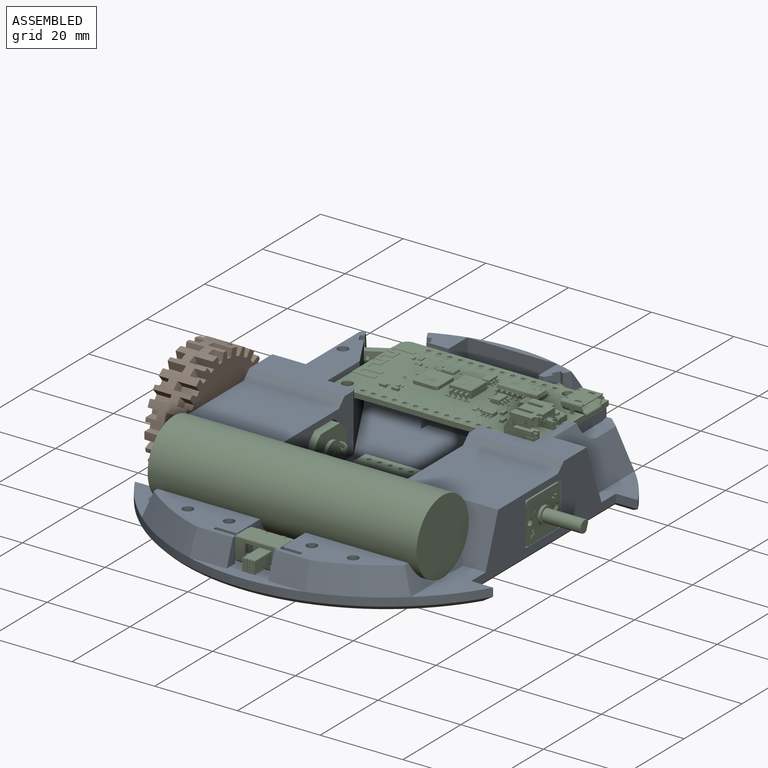
[diagram: assembled view]
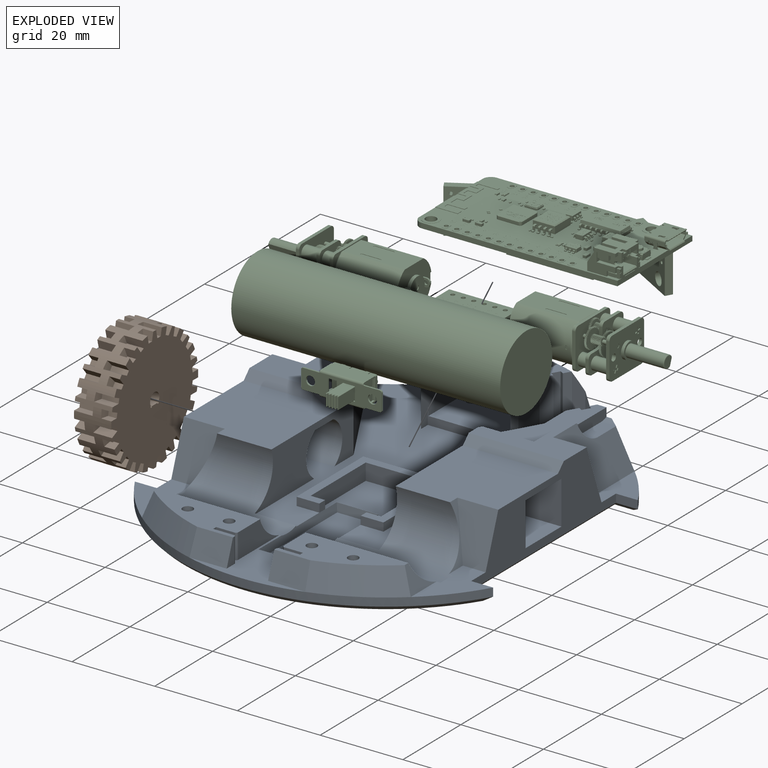
[diagram: exploded view]
GUIDED TOUR — FREECAD ASSEMBLY "Layout"

This assembly has 3 components, labeled P0..P2 below (a component is one placed body or linked part; the same part can appear more than once), held together by 0 modeled joints plus 3 derived contact edges. A joint is a constraint between two components; its type names the relative motion it leaves free:
  CONTACT — a derived adjacency edge — the two components touch in the source model (clearance under 2% of the assembly's diagonal); it is measured from the geometry, not a modeled constraint.
Axis/direction vectors are unit vectors and 'through' points are millimeter coordinates, both in the assembly's world frame.

MATES
  1. CONTACT "contact_0_1": P0 <-> P1, contact direction (-1.000, 0.000, 0.000) through (-38.50, 7.25, 14.91) mm (derived from contact, not a modeled constraint)
  2. CONTACT "contact_0_2": P0 <-> P2, contact direction (-0.007, 0.764, 0.645) through (28.52, 5.12, 1.77) mm (derived from contact, not a modeled constraint)
  3. CONTACT "contact_1_2": P1 <-> P2, contact direction (1.000, 0.000, 0.000) through (-38.95, -1.55, 5.00) mm (derived from contact, not a modeled constraint)

ASSEMBLY ORDER
  1. P0 — the base component [order heuristic]
  2. P1 [order heuristic]
  3. P2 [order heuristic]
Order-tag legend:
  [order heuristic] — this assembly is geometrically interlocked (no collision-free removal order exists), so components are listed in mate-graph order; insertion feasibility is not verified.

Of the 3 components, 2 carry a construction recipe — the FreeCAD feature program (sketches with constraints, then the solid features that consume them) that regenerates the part from scratch, quoted from this document or from the linked companion document it references; the rest are supplied as boundary geometry only. The tour below walks the components in assembly order: each is shown spotlighted twice — in the assembled view, then in the exploded view, where a leader line traces a displaced component back to its assembled socket (components that stay in place when exploded have no leader line; saturated green if recipe-attached, orange if geometry-only; every other component desaturated gray) — followed by its recipe or geometry summary and the mates that hold it.
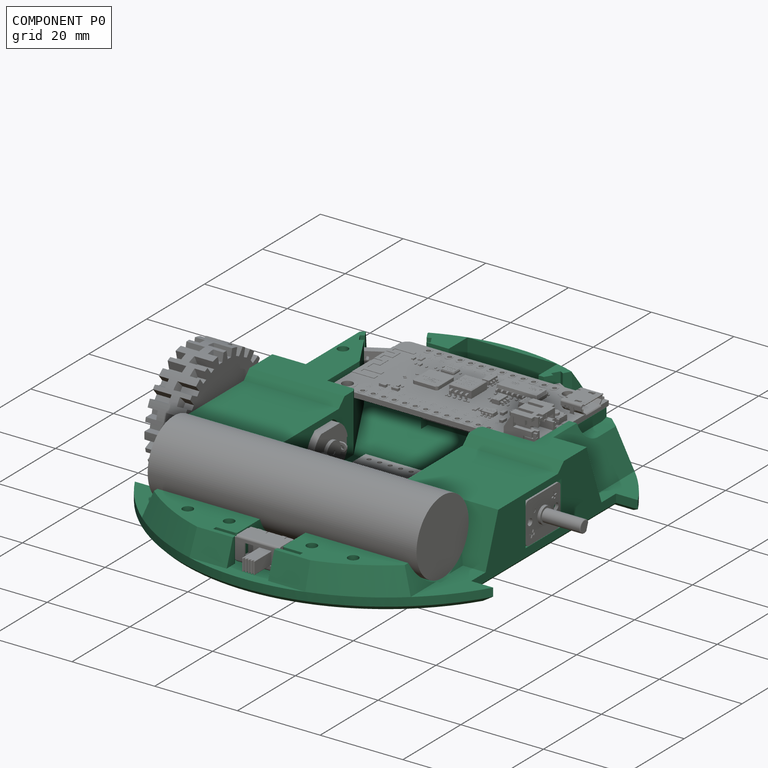
[diagram: component P0 — assembled]
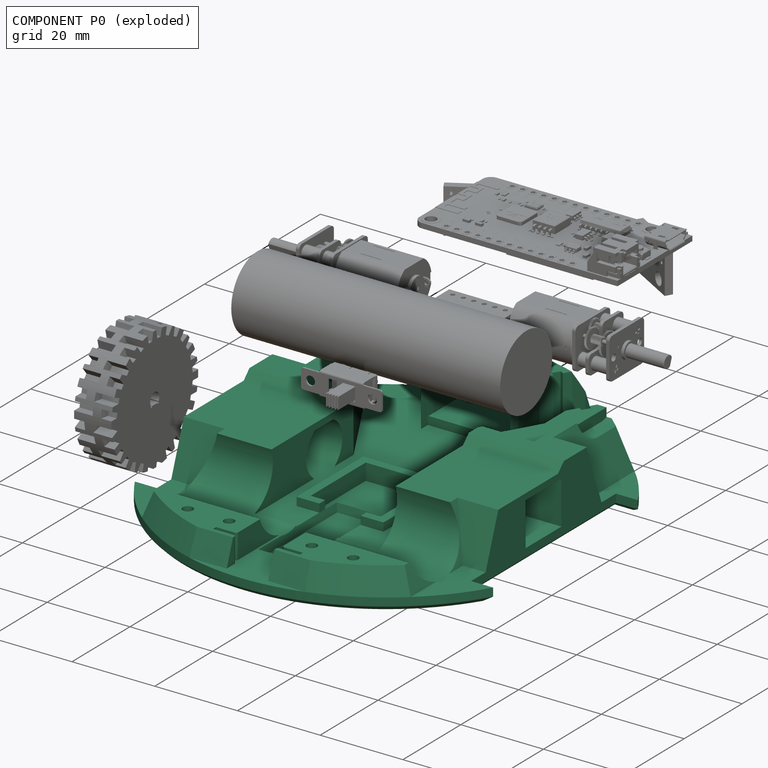
[diagram: component P0 — exploded]
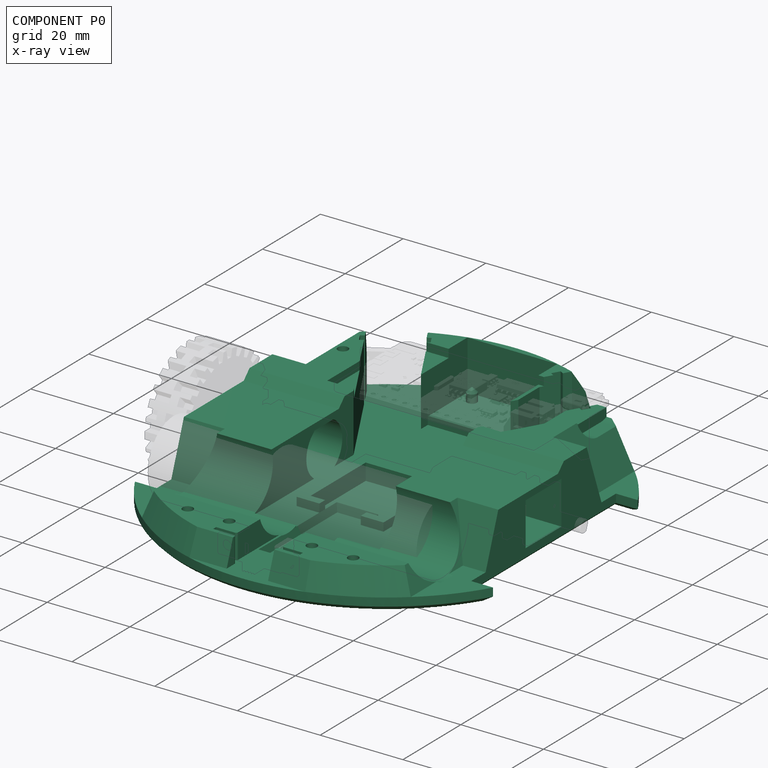
[diagram: component P0 — x-ray view]
COMPONENT P0 — recipe-attached ("Body", modeled in this document).
Held by: resting contact with P1 (derived edge); resting contact with P2 (derived edge).
Construction recipe (the document's own serialized feature program — sketch geometry with constraints, then the solid features built on it; lengths are millimeters unless a unit is written):

FEATURE [Sketcher::SketchObject] Sketch  label="Layout001"
  ArcFitTolerance = 1e-06
  AttachmentSupport = -> [XY_Plane001]
  FullyConstrained = true
  MakeInternals = false
  MapMode = 5
  sketch-geometry (3):
    g0: Circle CenterX=0 CenterY=0 CenterZ=0 NormalX=0 NormalY=0 NormalZ=1 AngleXU=0 Radius=50
    g1: LineSegment StartX=0 StartY=0 StartZ=0 EndX=-25 EndY=43.3013 EndZ=0
    g2: LineSegment StartX=0 StartY=0 StartZ=0 EndX=25 EndY=43.3013 EndZ=0
  constraints (8):
    c: Coincident(g0,g-1)
    c: Diameter(g0) = 100
    c: Coincident(g1,g0)
    c: PointOnObject(g1,g0)
    c: Coincident(g2,g0)
    c: PointOnObject(g2,g0)
    c: Angle(g2,g-2) = 0.523599
    c: Angle(g-2,g1) = 0.523599
FEATURE [Sketcher::SketchObject] Sketch001
  ArcFitTolerance = 1e-06
  AttachmentSupport = -> [XY_Plane001]
  FullyConstrained = true
  MakeInternals = false
  MapMode = 5
  sketch-geometry (1):
    g0: Circle CenterX=0 CenterY=0 CenterZ=0 NormalX=0 NormalY=0 NormalZ=1 AngleXU=0 Radius=50
  constraints (2):
    c: Coincident(g0,g-1)
    c: Diameter(g0) = 100
FEATURE [PartDesign::Pad] Pad
  Direction = (0,0,1)
  Length = 0
  Length2 = 3
  Profile = -> Sketch001
  ReferenceAxis = -> Sketch001 [N_Axis]
  Refine = true
  Suppressed = false
  Type = 4
FEATURE [Sketcher::SketchObject] Sketch002
  ArcFitTolerance = 1e-06
  AttachmentSupport = -> [XY_Plane001]
  FullyConstrained = true
  MakeInternals = false
  MapMode = 5
  sketch-geometry (15):
    g0: LineSegment StartX=-50 StartY=20 StartZ=0 EndX=-50 EndY=-20 EndZ=0
    g1: LineSegment StartX=50 StartY=-20 StartZ=0 EndX=50 EndY=20 EndZ=0
    g2: LineSegment StartX=-50 StartY=-20 StartZ=0 EndX=-32.5 EndY=-20 EndZ=0
    g3: LineSegment StartX=-32.5 StartY=-20 StartZ=0 EndX=-32.5 EndY=-37.9967 EndZ=0
    g4: LineSegment StartX=32.5 StartY=-37.9967 StartZ=0 EndX=32.5 EndY=-20 EndZ=0
    g5: LineSegment StartX=32.5 StartY=-20 StartZ=0 EndX=50 EndY=-20 EndZ=0
    g6: Circle [constr] CenterX=0 CenterY=0 CenterZ=0 NormalX=0 NormalY=0 NormalZ=1 AngleXU=0 Radius=50
    g7: ArcOfCircle CenterX=0 CenterY=0 CenterZ=0 NormalX=0 NormalY=0 NormalZ=1 AngleXU=0 Radius=50 StartAngle=4.0048 EndAngle=4.42859
    g8: ArcOfCircle CenterX=0 CenterY=0 CenterZ=0 NormalX=0 NormalY=0 NormalZ=1 AngleXU=0 Radius=50 StartAngle=4.99618 EndAngle=5.41997
    g9: LineSegment StartX=-14 StartY=-48 StartZ=0 EndX=14 EndY=-48 EndZ=0
    g10: LineSegment StartX=-50 StartY=20 StartZ=0 EndX=-35 EndY=20 EndZ=0
    g11: LineSegment StartX=-35 StartY=20 StartZ=0 EndX=-35 EndY=35.7071 EndZ=0
    g12: LineSegment StartX=50 StartY=20 StartZ=0 EndX=35 EndY=20 EndZ=0
    g13: LineSegment StartX=35 StartY=20 StartZ=0 EndX=35 EndY=35.7071 EndZ=0
    g14: ArcOfCircle CenterX=0 CenterY=0 CenterZ=0 NormalX=0 NormalY=0 NormalZ=1 AngleXU=0 Radius=50 StartAngle=0.795399 EndAngle=2.34619
  constraints (44):
    c: Vertical(g0)
    c: Vertical(g1)
    c: DistanceY(g1,g1) = 40
    c: Distance(g1,g-1) = 20
    c: DistanceX(g0,g1) = 100
    c: DistanceX(g-1,g1) = 50
    c: Coincident(g2,g0)
    c: Horizontal(g2)
    c: Coincident(g3,g2)
    c: Vertical(g3)
    c: Vertical(g4)
    c: Coincident(g5,g4)
    c: Coincident(g5,g1)
    c: Horizontal(g5)
    c: Horizontal(g2,g4)
    c: Equal(g5,g2)
    c: DistanceX(g3,g4) = 65
    c: Horizontal(g4,g3)
    c: Coincident(g6,g-1)
    c: Diameter(g6) = 100
    c: PointOnObject(g3,g6)
    c: Coincident(g7,g6)
    c: Coincident(g7,g3)
    c: Coincident(g8,g6)
    c: Coincident(g8,g4)
    c: Coincident(g9,g7)
    c: Coincident(g9,g8)
    c: Horizontal(g9)
    c: DistanceY(g8,g-1) = 48
    c: Coincident(g10,g0)
    c: Horizontal(g10)
    c: Coincident(g11,g10)
    c: PointOnObject(g11,g6)
    c: Coincident(g12,g1)
    c: Horizontal(g12)
    c: Coincident(g13,g12)
    c: Coincident(g14,g6)
    c: Coincident(g14,g11)
    c: Coincident(g14,g13)
    c: Horizontal(g13,g11)
    c: Vertical(g11)
    c: Vertical(g13)
    c: Horizontal(g10,g12)
    c: DistanceX(g11,g13) = 70
FEATURE [PartDesign::Pad] Pad002  label="WheelMount"
  BaseFeature = -> Pad
  Direction = (0,0,1)
  Length = 14
  Length2 = 10
  Profile = -> Sketch002
  ReferenceAxis = -> Sketch002 [N_Axis]
  Refine = true
  Suppressed = false
  TaperAngle = -20
  Type = 0
FEATURE [Sketcher::SketchObject] Sketch005
  ArcFitTolerance = 1e-06
  AttachmentSupport = -> [XY_Plane001]
  FullyConstrained = true
  MakeInternals = false
  MapMode = 5
  sketch-geometry (4):
    g0: LineSegment StartX=-60 StartY=25 StartZ=0 EndX=-60 EndY=-25 EndZ=0
    g1: LineSegment StartX=-60 StartY=-25 StartZ=0 EndX=-38 EndY=-25 EndZ=0
    g2: LineSegment StartX=-38 StartY=-25 StartZ=0 EndX=-38 EndY=25 EndZ=0
    g3: LineSegment StartX=-38 StartY=25 StartZ=0 EndX=-60 EndY=25 EndZ=0
  constraints (12):
    c: Coincident(g0,g1)
    c: Coincident(g1,g2)
    c: Coincident(g2,g3)
    c: Coincident(g3,g0)
    c: Vertical(g0)
    c: Vertical(g2)
    c: Horizontal(g1)
    c: Horizontal(g3)
    c: DistanceX(g1,g-1) = 38
    c: DistanceY(g0,g0) = 50
    c: DistanceY(g-1,g0) = 25
    c: DistanceX(g0,g-1) = 60
FEATURE [PartDesign::Pocket] Pocket001  label="WheelCutout"
  BaseFeature = -> Pad002
  Direction = (0,0,-1)
  Length = 5
  Length2 = 5
  Midplane = true
  Profile = -> Sketch005
  ReferenceAxis = -> Sketch005 [N_Axis]
  Refine = true
  Suppressed = false
  Type = 1
FEATURE [Sketcher::SketchObject] Sketch006
  ArcFitTolerance = 1e-06
  AttachmentSupport = -> [Pocket001]
  FullyConstrained = true
  MakeInternals = false
  MapMode = 5
  Placement = pos=(-38,0,0) rot=(0.57735,-0.57735,-0.57735;2.0944rad)
  sketch-geometry (4):
    g0: LineSegment StartX=-6.175 StartY=10.45 StartZ=0 EndX=-6.175 EndY=0 EndZ=0
    g1: LineSegment StartX=-6.175 StartY=0 StartZ=0 EndX=6.175 EndY=0 EndZ=0
    g2: LineSegment StartX=6.175 StartY=0 StartZ=0 EndX=6.175 EndY=10.45 EndZ=0
    g3: LineSegment StartX=6.175 StartY=10.45 StartZ=0 EndX=-6.175 EndY=10.45 EndZ=0
  constraints (11):
    c: Coincident(g0,g1)
    c: Coincident(g1,g2)
    c: Coincident(g2,g3)
    c: Coincident(g3,g0)
    c: Vertical(g0)
    c: Vertical(g2)
    c: Horizontal(g1)
    c: PointOnObject(g1,g-1)
    c: DistanceY(g2,g2) = 10.45
    c: DistanceX(g3,g3) = 12.35
    c: Symmetric(g2,g0,g-2)
FEATURE [PartDesign::Pocket] Pocket002  label="GearboxCutout"
  BaseFeature = -> Pocket001
  Direction = (1,0,0)
  Length = 9.5
  Length2 = 5
  Profile = -> Sketch006
  ReferenceAxis = -> Sketch006 [N_Axis]
  Refine = true
  Suppressed = false
  Type = 0
FEATURE [Sketcher::SketchObject] Sketch007
  ArcFitTolerance = 1e-06
  AttachmentSupport = -> [Pocket002]
  FullyConstrained = true
  MakeInternals = false
  MapMode = 5
  Placement = pos=(-28.5,0,0) rot=(0.57735,-0.57735,-0.57735;2.0944rad)
  sketch-geometry (6):
    g0: ArcOfCircle CenterX=0 CenterY=5.125 CenterZ=0 NormalX=0 NormalY=0 NormalZ=1 AngleXU=0 Radius=6.2 StartAngle=2.16853 EndAngle=4.11465
    g1: ArcOfCircle CenterX=0 CenterY=5.125 CenterZ=0 NormalX=0 NormalY=0 NormalZ=1 AngleXU=0 Radius=6.2 StartAngle=5.31012 EndAngle=7.25625
    g2: LineSegment StartX=-3.48918 StartY=0 StartZ=0 EndX=3.48918 EndY=0 EndZ=0
    g3: LineSegment StartX=-3.48918 StartY=10.25 StartZ=0 EndX=-3.48918 EndY=10.45 EndZ=0
    g4: LineSegment StartX=-3.48918 StartY=10.45 StartZ=0 EndX=3.48918 EndY=10.45 EndZ=0
    g5: LineSegment StartX=3.48918 StartY=10.45 StartZ=0 EndX=3.48918 EndY=10.25 EndZ=0
  constraints (19):
    c: Coincident(g2,g0)
    c: Coincident(g2,g1)
    c: Horizontal(g2)
    c: Equal(g0,g1)
    c: Coincident(g3,g0)
    c: Coincident(g4,g3)
    c: Horizontal(g4)
    c: Coincident(g5,g4)
    c: Coincident(g5,g1)
    c: Vertical(g5)
    c: Vertical(g3)
    c: Equal(g3,g5)
    c: Distance(g5,g5) = 0.2
    c: PointOnObject(g1,g-1)
    c: Radius(g1) = 6.2
    c: Coincident(g0,g1)
    c: Vertical(g1,g1)
    c: PointOnObject(g0,g-2)
    c: DistanceY(g-1,g0) = 5.125
FEATURE [PartDesign::Pocket] Pocket003  label="MotorCutout"
  BaseFeature = -> Pocket002
  Direction = (1,0,0)
  Length = 15
  Length2 = 5
  Profile = -> Sketch007
  ReferenceAxis = -> Sketch007 [N_Axis]
  Refine = true
  Suppressed = false
  Type = 0
FEATURE [PartDesign::Mirrored] Mirrored
  BaseFeature = -> Pocket003
  MirrorPlane = -> Sketch005 [V_Axis]
  Originals = -> [Pocket001,Pocket002,Pocket003]
  Refine = true
  Suppressed = false
  TransformMode = 0
FEATURE [Sketcher::SketchObject] Sketch008
  ArcFitTolerance = 1e-06
  AttachmentSupport = -> [YZ_Plane001]
  FullyConstrained = true
  MakeInternals = false
  MapMode = 5
  Placement = pos=(0,0,0) rot=(0.57735,0.57735,0.57735;2.0944rad)
  sketch-geometry (6):
    g0: Circle [constr] CenterX=-27 CenterY=9 CenterZ=0 NormalX=0 NormalY=0 NormalZ=1 AngleXU=0 Radius=9.25
    g1: ArcOfCircle CenterX=-27 CenterY=9 CenterZ=0 NormalX=0 NormalY=0 NormalZ=1 AngleXU=0 Radius=9.25 StartAngle=3.47189 EndAngle=7.85398
    g2: LineSegment StartX=-27 StartY=18.25 StartZ=0 EndX=-27 EndY=36 EndZ=0
    g3: LineSegment StartX=-27 StartY=36 StartZ=0 EndX=-57 EndY=36 EndZ=0
    g4: LineSegment StartX=-57 StartY=36 StartZ=0 EndX=-57 EndY=6 EndZ=0
    g5: LineSegment StartX=-57 StartY=6 StartZ=0 EndX=-35.75 EndY=6 EndZ=0
  constraints (18):
    c: Diameter(g0) = 18.5
    c: DistanceY(g-1,g0) = 9
    c: DistanceX(g0,g-1) = 27
    c: Coincident(g1,g0)
    c: PointOnObject(g1,g0)
    c: Coincident(g1,g2)
    c: Coincident(g2,g3)
    c: Horizontal(g3)
    c: Coincident(g3,g4)
    c: Vertical(g4)
    c: Coincident(g4,g5)
    c: Coincident(g5,g1)
    c: Horizontal(g5)
    c: DistanceY(g-1,g4) = 6
    c: DistanceY(g4,g4) = 30
    c: DistanceX(g3,g3) = 30
    c: Vertical(g1,g0)
    c: Vertical(g2)
FEATURE [PartDesign::Pocket] Pocket004  label="BatteryCutout"
  BaseFeature = -> Mirrored
  Direction = (-1,0,0)
  Length = 67
  Length2 = 5
  Midplane = true
  Profile = -> Sketch008
  ReferenceAxis = -> Sketch008 [N_Axis]
  Refine = true
  Suppressed = false
  Type = 0
FEATURE [Sketcher::SketchObject] Sketch009
  ArcFitTolerance = 1e-06
  AttachmentSupport = -> [Pocket004]
  FullyConstrained = true
  MakeInternals = false
  MapMode = 5
  Placement = pos=(0,0,6) rot=(0,0,1;0rad)
  sketch-geometry (20):
    g0: LineSegment StartX=-5 StartY=-54.8 StartZ=0 EndX=5 EndY=-54.8 EndZ=0
    g1: LineSegment StartX=5 StartY=-54.8 StartZ=0 EndX=5 EndY=-45.3 EndZ=0
    g2: LineSegment StartX=5.5 StartY=-44.8 StartZ=0 EndX=10.5 EndY=-44.8 EndZ=0
    g3: LineSegment StartX=10.5 StartY=-44.8 StartZ=0 EndX=10.5 EndY=-43.8 EndZ=0
    g4: LineSegment StartX=10.5 StartY=-43.8 StartZ=0 EndX=6 EndY=-43.8 EndZ=0
    g5: LineSegment StartX=5.5 StartY=-43.3 StartZ=0 EndX=5.5 EndY=-28.8 EndZ=0
    g6: LineSegment StartX=5.5 StartY=-28.8 StartZ=0 EndX=-5.5 EndY=-28.8 EndZ=0
    g7: LineSegment StartX=-5.5 StartY=-28.8 StartZ=0 EndX=-5.5 EndY=-43.3 EndZ=0
    g8: LineSegment StartX=-6 StartY=-43.8 StartZ=0 EndX=-10.5 EndY=-43.8 EndZ=0
    g9: LineSegment StartX=-10.5 StartY=-43.8 StartZ=0 EndX=-10.5 EndY=-44.8 EndZ=0
    g10: LineSegment StartX=-10.5 StartY=-44.8 StartZ=0 EndX=-5.5 EndY=-44.8 EndZ=0
    g11: LineSegment StartX=-5 StartY=-45.3 StartZ=0 EndX=-5 EndY=-54.8 EndZ=0
    g12: ArcOfCircle CenterX=-6 CenterY=-43.3 CenterZ=0 NormalX=0 NormalY=0 NormalZ=1 AngleXU=0 Radius=0.5 StartAngle=4.71239 EndAngle=6.28319
    g13: GeomPoint [constr] X=-5.5 Y=-43.8 Z=0
    g14: ArcOfCircle CenterX=6 CenterY=-43.3 CenterZ=0 NormalX=0 NormalY=0 NormalZ=1 AngleXU=0 Radius=0.5 StartAngle=3.14159 EndAngle=4.71239
    g15: GeomPoint [constr] X=5.5 Y=-43.8 Z=0
    g16: ArcOfCircle CenterX=-5.5 CenterY=-45.3 CenterZ=0 NormalX=0 NormalY=0 NormalZ=1 AngleXU=0 Radius=0.5 StartAngle=-5.3e-15 EndAngle=1.5708
    g17: GeomPoint [constr] X=-5 Y=-44.8 Z=0
    g18: ArcOfCircle CenterX=5.5 CenterY=-45.3 CenterZ=0 NormalX=0 NormalY=0 NormalZ=1 AngleXU=0 Radius=0.5 StartAngle=1.5708 EndAngle=3.14159
    g19: GeomPoint [constr] X=5 Y=-44.8 Z=0
  constraints (51):
    c: Coincident(g0,g1)
    c: Vertical(g1)
    c: Horizontal(g2)
    c: Coincident(g2,g3)
    c: Vertical(g3)
    c: Coincident(g3,g4)
    c: Horizontal(g4)
    c: Vertical(g5)
    c: Coincident(g5,g6)
    c: Horizontal(g6)
    c: Coincident(g6,g7)
    c: Horizontal(g8)
    c: Coincident(g8,g9)
    c: Coincident(g9,g10)
    c: Coincident(g11,g0)
    c: Vertical(g11)
    c: Vertical(g9)
    c: Vertical(g7)
    c: DistanceX(g13,g-1) = 5.5
    c: DistanceX(g-1,g15) = 5.5
    c: DistanceX(g8,g3) = 21
    c: Horizontal(g13,g15)
    c: DistanceY(g3,g-1) = 43.8
    c: DistanceY(g3,g3) = 1
    c: Horizontal(g10)
    c: DistanceX(g0,g0) = 10
    c: DistanceY(g1,g19) = 10
    c: Horizontal(g0)
    c: DistanceY(g15,g5) = 15
    c: PointOnObject(g13,g7)
    c: PointOnObject(g13,g8)
    c: Tangent(g7,g12) = 1.5708
    c: Tangent(g8,g12) = 1.5708
    c: PointOnObject(g15,g4)
    c: PointOnObject(g15,g5)
    c: Tangent(g4,g14) = 1.5708
    c: Tangent(g5,g14) = 1.5708
    c: PointOnObject(g17,g10)
    c: PointOnObject(g17,g11)
    c: Tangent(g10,g16) = 1.5708
    c: Tangent(g11,g16) = 1.5708
    c: PointOnObject(g19,g1)
    c: PointOnObject(g19,g2)
    c: Tangent(g1,g18) = 1.5708
    c: Tangent(g2,g18) = 1.5708
    c: Equal(g18,g14)
    c: Equal(g14,g12)
    c: Equal(g12,g16)
    c: Radius(g12) = 0.5
    c: Symmetric(g17,g19,g-2)
    c: Equal(g4,g8)
FEATURE [PartDesign::Pocket] Pocket005  label="SwitchCutout"
  BaseFeature = -> Pocket004
  Direction = (0,0,-1)
  Length = 6
  Length2 = 5
  Profile = -> Sketch009
  ReferenceAxis = -> Sketch009 [N_Axis]
  Refine = true
  Suppressed = false
  Type = 0
FEATURE [Sketcher::SketchObject] Sketch010
  ArcFitTolerance = 1e-06
  AttachmentSupport = -> [XY_Plane001]
  FullyConstrained = true
  MakeInternals = false
  MapMode = 5
  sketch-geometry (4):
    g0: LineSegment StartX=-15 StartY=22 StartZ=0 EndX=-15 EndY=-24 EndZ=0
    g1: LineSegment StartX=-15 StartY=-24 StartZ=0 EndX=15 EndY=-24 EndZ=0
    g2: LineSegment StartX=15 StartY=-24 StartZ=0 EndX=15 EndY=22 EndZ=0
    g3: LineSegment StartX=15 StartY=22 StartZ=0 EndX=-15 EndY=22 EndZ=0
  constraints (12):
    c: Coincident(g0,g1)
    c: Coincident(g1,g2)
    c: Coincident(g2,g3)
    c: Coincident(g3,g0)
    c: Vertical(g0)
    c: Vertical(g2)
    c: Horizontal(g1)
    c: Horizontal(g3)
    c: DistanceX(g3,g3) = 30
    c: DistanceX(g-1,g2) = 15
    c: DistanceY(g-1,g2) = 22
    c: DistanceY(g1,g-1) = 24
FEATURE [PartDesign::Pocket] Pocket006  label="MainWiringAreaCutout"
  BaseFeature = -> Pocket005
  Direction = (0,0,-1)
  Length = 5
  Length2 = 5
  Profile = -> Sketch010
  ReferenceAxis = -> Sketch010 [N_Axis]
  Refine = true
  Reversed = true
  Suppressed = false
  Type = 1
FEATURE [Sketcher::SketchObject] Sketch011
  ArcFitTolerance = 1e-06
  AttachmentSupport = -> [XY_Plane001]
  FullyConstrained = true
  MakeInternals = false
  MapMode = 5
  sketch-geometry (48):
    g0: LineSegment [constr] StartX=-28.8819 StartY=32.125 StartZ=0 EndX=-16.5411 EndY=39.25 EndZ=0
    g1: LineSegment [constr] StartX=-16.5411 StartY=39.25 StartZ=0 EndX=-15.4911 EndY=37.4313 EndZ=0
    g2: LineSegment [constr] StartX=-15.4911 StartY=37.4313 StartZ=0 EndX=-27.8319 EndY=30.3063 EndZ=0
    g3: LineSegment [constr] StartX=-27.8319 StartY=30.3063 StartZ=0 EndX=-28.8819 EndY=32.125 EndZ=0
    g4: LineSegment [constr] StartX=13.3801 StartY=41.075 StartZ=0 EndX=12.3301 EndY=39.2563 EndZ=0
    g5: LineSegment [constr] StartX=12.3301 StartY=39.2563 StartZ=0 EndX=24.671 EndY=32.1313 EndZ=0
    g6: LineSegment [constr] StartX=24.671 StartY=32.1313 StartZ=0 EndX=25.721 EndY=33.95 EndZ=0
    g7: LineSegment [constr] StartX=25.721 StartY=33.95 StartZ=0 EndX=13.3801 EndY=41.075 EndZ=0
    g8: GeomPoint [constr] X=21.131 Y=36.6 Z=0
    g9: LineSegment [constr] StartX=0 StartY=0 StartZ=0 EndX=21.131 EndY=36.6 EndZ=0
    g10: LineSegment [constr] StartX=-21.131 StartY=36.6 StartZ=0 EndX=0 EndY=0 EndZ=0
    g11: LineSegment StartX=-28.0159 StartY=32.625 StartZ=0 EndX=-29.9645 EndY=36 EndZ=0
    g12: LineSegment StartX=-29.9645 StartY=36 StartZ=0 EndX=-50 EndY=36 EndZ=0
    g13: LineSegment StartX=-50 StartY=36 StartZ=0 EndX=-50 EndY=50 EndZ=0
    g14: LineSegment StartX=-50 StartY=50 StartZ=0 EndX=-18.5 EndY=50 EndZ=0
    g15: LineSegment StartX=-17.4071 StartY=38.75 StartZ=0 EndX=-16.5411 EndY=39.25 EndZ=0
    g16: LineSegment StartX=-16.5411 StartY=39.25 StartZ=0 EndX=-15.4911 EndY=37.4313 EndZ=0
    g17: LineSegment StartX=-15.4911 StartY=37.4313 StartZ=0 EndX=-16.3571 EndY=36.9313 EndZ=0
    g18: LineSegment StartX=-16.3571 StartY=36.9313 StartZ=0 EndX=-14.8571 EndY=34.3333 EndZ=0
    g19: LineSegment StartX=-25.4659 StartY=28.2083 StartZ=0 EndX=-26.9659 EndY=30.8063 EndZ=0
    g20: LineSegment StartX=-26.9659 StartY=30.8063 StartZ=0 EndX=-27.8319 EndY=30.3063 EndZ=0
    g21: LineSegment StartX=-27.8319 StartY=30.3063 StartZ=0 EndX=-28.8819 EndY=32.125 EndZ=0
    g22: LineSegment StartX=-28.8819 StartY=32.125 StartZ=0 EndX=-28.0159 EndY=32.625 EndZ=0
    g23: LineSegment StartX=18.5 StartY=50 StartZ=0 EndX=50 EndY=50 EndZ=0
    g24: LineSegment StartX=50 StartY=50 StartZ=0 EndX=50 EndY=36 EndZ=0
    g25: LineSegment StartX=24.8549 StartY=34.45 StartZ=0 EndX=25.721 EndY=33.95 EndZ=0
    g26: LineSegment StartX=25.721 StartY=33.95 StartZ=0 EndX=24.671 EndY=32.1313 EndZ=0
    g27: LineSegment StartX=24.671 StartY=32.1313 StartZ=0 EndX=23.8049 EndY=32.6313 EndZ=0
    g28: LineSegment StartX=23.8049 StartY=32.6313 StartZ=0 EndX=22.3049 EndY=30.0333 EndZ=0
    g29: LineSegment StartX=11.6961 StartY=36.1583 StartZ=0 EndX=13.1961 EndY=38.7563 EndZ=0
    g30: LineSegment StartX=13.1961 StartY=38.7563 StartZ=0 EndX=12.3301 EndY=39.2563 EndZ=0
    g31: LineSegment StartX=12.3301 StartY=39.2563 StartZ=0 EndX=13.3801 EndY=41.075 EndZ=0
    g32: LineSegment StartX=24.8549 StartY=34.45 StartZ=0 EndX=25.7498 EndY=36 EndZ=0
    g33: LineSegment StartX=25.7498 StartY=36 StartZ=0 EndX=50 EndY=36 EndZ=0
    g34: LineSegment StartX=-17.4071 StartY=38.75 StartZ=0 EndX=-18.5 EndY=40.6429 EndZ=0
    g35: LineSegment StartX=-18.5 StartY=50 StartZ=0 EndX=-18.5 EndY=40.6429 EndZ=0
    g36: LineSegment StartX=18.5 StartY=50 StartZ=0 EndX=18.5 EndY=42.3071 EndZ=0
    g37: LineSegment StartX=14.2461 StartY=40.575 StartZ=0 EndX=13.3801 EndY=41.075 EndZ=0
    g38: LineSegment StartX=14.2461 StartY=40.575 StartZ=0 EndX=15.2461 EndY=42.3071 EndZ=0
    g39: LineSegment StartX=15.2461 StartY=42.3071 StartZ=0 EndX=18.5 EndY=42.3071 EndZ=0
    g40: LineSegment StartX=-25.4659 StartY=28.2083 StartZ=0 EndX=-14.9534 EndY=10 EndZ=0
    g41: LineSegment StartX=-14.9534 StartY=10 StartZ=0 EndX=14.9534 EndY=10 EndZ=0
    g42: LineSegment StartX=14.9534 StartY=10 StartZ=0 EndX=22.3049 EndY=22.7333 EndZ=0
    g43: LineSegment StartX=22.3049 StartY=22.7333 StartZ=0 EndX=22.3049 EndY=30.0333 EndZ=0
    g44: LineSegment StartX=11.6961 StartY=36.1583 StartZ=0 EndX=11.6961 EndY=28.8583 EndZ=0
    g45: LineSegment StartX=11.6961 StartY=28.8583 StartZ=0 EndX=3.69504 EndY=15 EndZ=0
    g46: LineSegment StartX=3.69504 StartY=15 StartZ=0 EndX=-3.69504 EndY=15 EndZ=0
    g47: LineSegment StartX=-14.8571 StartY=34.3333 StartZ=0 EndX=-3.69504 EndY=15 EndZ=0
  constraints (132):
    c: Coincident(g0,g1)
    c: Coincident(g1,g2)
    c: Coincident(g2,g3)
    c: Coincident(g3,g0)
    c: Coincident(g4,g5)
    c: Coincident(g5,g6)
    c: Coincident(g6,g7)
    c: Coincident(g7,g4)
    c: Equal(g2,g0)
    c: Equal(g0,g5)
    c: Equal(g5,g7)
    c: Equal(g6,g4)
    c: Equal(g4,g1)
    c: Equal(g1,g3)
    c: Perpendicular(g2,g1)
    c: Perpendicular(g5,g6)
    c: Distance(g5,g5) = 14.25
    c: Distance(g6,g6) = 2.1
    c: PointOnObject(g8,g7)
    c: Distance(g8,g6) = 5.3
    c: Coincident(g9,g-1)
    c: Coincident(g9,g8)
    c: Perpendicular(g9,g7)
    c: Angle(g-1,g9) = 1.0472
    c: DistanceY(g-1,g8) = 36.6
    c: PointOnObject(g10,g0)
    c: Coincident(g10,g9)
    c: Distance(g10,g0) = 5.3
    c: Angle(g10,g-1) = 1.0472
    c: Horizontal(g10,g8)
    c: Perpendicular(g10,g0)
    c: PointOnObject(g11,g0)
    c: Coincident(g11,g12)
    c: Horizontal(g12)
    c: Coincident(g12,g13)
    c: Vertical(g13)
    c: Coincident(g13,g14)
    c: Horizontal(g14)
    c: PointOnObject(g15,g0)
    c: Coincident(g15,g0)
    c: Coincident(g15,g16)
    c: Coincident(g16,g1)
    c: Coincident(g16,g17)
    c: PointOnObject(g17,g2)
    c: Coincident(g17,g18)
    c: PointOnObject(g19,g2)
    c: Coincident(g19,g20)
    c: Coincident(g20,g2)
    c: Coincident(g20,g21)
    c: Coincident(g21,g0)
    c: Coincident(g21,g22)
    c: Coincident(g22,g11)
    c: Horizontal(g23)
    c: Coincident(g23,g24)
    c: PointOnObject(g25,g7)
    c: Coincident(g25,g6)
    c: Coincident(g25,g26)
    c: Coincident(g26,g5)
    c: Coincident(g26,g27)
    c: PointOnObject(g27,g5)
    c: Coincident(g27,g28)
    c: PointOnObject(g29,g5)
    c: Coincident(g29,g30)
    c: Coincident(g30,g4)
    c: Coincident(g30,g31)
    c: Coincident(g31,g4)
    c: Equal(g29,g28)
    c: Equal(g28,g18)
    c: Equal(g18,g19)
    c: Perpendicular(g30,g29)
    c: Perpendicular(g27,g28)
    c: Distance(g27,g27) = 1
    c: Coincident(g32,g25)
    c: Coincident(g33,g32)
    c: Coincident(g33,g24)
    c: Horizontal(g33)
    c: Parallel(g32,g28)
    c: Equal(g25,g27)
    c: Distance(g29,g29) = 3
    c: Equal(g17,g15)
    c: Equal(g15,g22)
    c: Equal(g22,g20)
    c: Perpendicular(g17,g18)
    c: Perpendicular(g2,g19)
    c: Vertical(g24)
    c: Equal(g23,g14)
    c: DistanceX(g13,g23) = 100
    c: DistanceY(g-1,g23) = 50
    c: Equal(g24,g13)
    c: Coincident(g34,g15)
    c: Coincident(g35,g14)
    c: Coincident(g35,g34)
    c: Vertical(g35)
    c: Symmetric(g23,g14,g-2)
    c: DistanceX(g14,g23) = 37
    c: DistanceY(g-1,g24) = 36
    c: Equal(g30,g27)
    c: Equal(g30,g17)
    c: Perpendicular(g15,g34)
    c: Coincident(g36,g23)
    c: Vertical(g36)
    c: PointOnObject(g37,g7)
    c: Coincident(g37,g4)
    c: Equal(g37,g30)
    c: Coincident(g38,g37)
    c: Coincident(g39,g38)
    c: Coincident(g39,g36)
    c: Perpendicular(g37,g38)
    c: Distance(g38,g38) = 2
    c: Perpendicular(g36,g39)
    c: Perpendicular(g22,g11)
    c: Coincident(g40,g19)
    c: Coincident(g41,g40)
    c: Symmetric(g41,g40,g-2)
    c: Parallel(g40,g19)
    c: Coincident(g42,g41)
    c: Coincident(g43,g42)
    c: Coincident(g43,g28)
    c: Vertical(g43)
    c: DistanceY(g-1,g41) = 10
    c: Parallel(g42,g29)
    c: Coincident(g44,g29)
    c: Vertical(g44)
    c: Coincident(g45,g44)
    c: Coincident(g46,g45)
    c: Horizontal(g46)
    c: Coincident(g47,g18)
    c: Coincident(g47,g46)
    c: Parallel(g47,g18)
    c: Parallel(g45,g29)
    c: Equal(g44,g43)
    c: DistanceY(g-1,g45) = 15
FEATURE [PartDesign::Pocket] Pocket007  label="TOFSensorCutouts"
  BaseFeature = -> Pocket006
  Direction = (0,0,-1)
  Length = 5
  Length2 = 5
  Profile = -> Sketch011
  ReferenceAxis = -> Sketch011 [N_Axis]
  Refine = true
  Reversed = true
  Suppressed = false
  Type = 1
FEATURE [Sketcher::SketchObject] Sketch012
  ArcFitTolerance = 1e-06
  AttachmentOffset = pos=(0,0,2) rot=(0,0,1;0rad)
  AttachmentSupport = -> [XY_Plane001]
  FullyConstrained = true
  MakeInternals = false
  MapMode = 5
  Placement = pos=(0,0,2) rot=(0,0,1;0rad)
  sketch-geometry (4):
    g0: LineSegment StartX=-10.85 StartY=43.5 StartZ=0 EndX=-10.85 EndY=27.2 EndZ=0
    g1: LineSegment StartX=-10.85 StartY=27.2 StartZ=0 EndX=10.85 EndY=27.2 EndZ=0
    g2: LineSegment StartX=10.85 StartY=27.2 StartZ=0 EndX=10.85 EndY=43.5 EndZ=0
    g3: LineSegment StartX=10.85 StartY=43.5 StartZ=0 EndX=-10.85 EndY=43.5 EndZ=0
  constraints (11):
    c: Coincident(g0,g1)
    c: Coincident(g1,g2)
    c: Coincident(g2,g3)
    c: Coincident(g3,g0)
    c: Vertical(g0)
    c: Vertical(g2)
    c: Horizontal(g1)
    c: DistanceX(g1,g1) = 21.7
    c: DistanceY(g0,g0) = 16.3
    c: DistanceY(g-1,g0) = 43.5
    c: Symmetric(g0,g2,g-2)
FEATURE [PartDesign::Pocket] Pocket008  label="IMUCutout"
  BaseFeature = -> Pocket007
  Direction = (0,0,-1)
  Length = 5
  Length2 = 5
  Profile = -> Sketch012
  ReferenceAxis = -> Sketch012 [N_Axis]
  Refine = true
  Reversed = true
  Suppressed = false
  Type = 1
FEATURE [Sketcher::SketchObject] Sketch013
  ArcFitTolerance = 1e-06
  AttachmentSupport = -> [Pocket008]
  FullyConstrained = true
  MakeInternals = false
  MapMode = 5
  Placement = pos=(0,0,2) rot=(0,0,1;0rad)
  sketch-geometry (4):
    g0: LineSegment StartX=-11 StartY=30 StartZ=0 EndX=-11 EndY=20 EndZ=0
    g1: LineSegment StartX=-11 StartY=20 StartZ=0 EndX=11 EndY=20 EndZ=0
    g2: LineSegment StartX=11 StartY=20 StartZ=0 EndX=11 EndY=30 EndZ=0
    g3: LineSegment StartX=11 StartY=30 StartZ=0 EndX=-11 EndY=30 EndZ=0
  constraints (12):
    c: Coincident(g0,g1)
    c: Coincident(g1,g2)
    c: Coincident(g2,g3)
    c: Coincident(g3,g0)
    c: Vertical(g0)
    c: Vertical(g2)
    c: Horizontal(g1)
    c: Horizontal(g3)
    c: Distance(g0,g0) = 10
    c: DistanceX(g0,g2) = 22
    c: Distance(g0,g-2) = 11
    c: DistanceY(g-1,g0) = 30
FEATURE [PartDesign::Pocket] Pocket009  label="IMUWireCutout"
  BaseFeature = -> Pocket008
  Direction = (0,0,-1)
  Length = 2
  Length2 = 2
  Profile = -> Sketch013
  ReferenceAxis = -> Sketch013 [N_Axis]
  Refine = true
  Suppressed = false
  Type = 4
FEATURE [Sketcher::SketchObject] Sketch014
  ArcFitTolerance = 1e-06
  AttachmentSupport = -> [XY_Plane001]
  FullyConstrained = true
  MakeInternals = false
  MapMode = 5
  sketch-geometry (8):
    g0: LineSegment StartX=-8.5 StartY=5 StartZ=0 EndX=-8.5 EndY=-14 EndZ=0
    g1: LineSegment StartX=-8.5 StartY=-14 StartZ=0 EndX=8.5 EndY=-14 EndZ=0
    g2: LineSegment StartX=8.5 StartY=-14 StartZ=0 EndX=8.5 EndY=5 EndZ=0
    g3: LineSegment StartX=8.5 StartY=5 StartZ=0 EndX=-8.5 EndY=5 EndZ=0
    g4: LineSegment StartX=-10.5 StartY=7 StartZ=0 EndX=-10.5 EndY=-16 EndZ=0
    g5: LineSegment StartX=-10.5 StartY=-16 StartZ=0 EndX=10.5 EndY=-16 EndZ=0
    g6: LineSegment StartX=10.5 StartY=-16 StartZ=0 EndX=10.5 EndY=7 EndZ=0
    g7: LineSegment StartX=10.5 StartY=7 StartZ=0 EndX=-10.5 EndY=7 EndZ=0
  constraints (23):
    c: Coincident(g0,g1)
    c: Coincident(g1,g2)
    c: Coincident(g2,g3)
    c: Coincident(g3,g0)
    c: Vertical(g0)
    c: Vertical(g2)
    c: Horizontal(g1)
    c: Coincident(g4,g5)
    c: Coincident(g5,g6)
    c: Coincident(g6,g7)
    c: Coincident(g7,g4)
    c: Vertical(g4)
    c: Vertical(g6)
    c: Horizontal(g5)
    c: DistanceX(g4,g0) = 2
    c: DistanceY(g2,g6) = 2
    c: Distance(g1,g5) = 2
    c: Distance(g6,g2) = 2
    c: DistanceX(g3,g3) = 17
    c: DistanceY(g2,g2) = 19
    c: Symmetric(g0,g2,g-2)
    c: DistanceY(g-1,g0) = 5
    c: Horizontal(g7)
FEATURE [PartDesign::Pad] Pad003  label="MotorDriverRetainingRing"
  BaseFeature = -> Pocket009
  Direction = (0,0,1)
  Length = 2
  Length2 = 10
  Profile = -> Sketch014
  ReferenceAxis = -> Sketch014 [N_Axis]
  Refine = true
  Suppressed = false
  Type = 0
FEATURE [Sketcher::SketchObject] Sketch015
  ArcFitTolerance = 1e-06
  AttachmentSupport = -> [XY_Plane001]
  FullyConstrained = true
  MakeInternals = false
  MapMode = 5
  sketch-geometry (4):
    g0: LineSegment StartX=5 StartY=-37 StartZ=0 EndX=5 EndY=-10 EndZ=0
    g1: LineSegment StartX=5 StartY=-10 StartZ=0 EndX=-5 EndY=-10 EndZ=0
    g2: LineSegment StartX=-5 StartY=-10 StartZ=0 EndX=-5 EndY=-37 EndZ=0
    g3: LineSegment StartX=-5 StartY=-37 StartZ=0 EndX=5 EndY=-37 EndZ=0
  constraints (12):
    c: Coincident(g0,g1)
    c: Coincident(g1,g2)
    c: Coincident(g2,g3)
    c: Coincident(g3,g0)
    c: Vertical(g0)
    c: Vertical(g2)
    c: Horizontal(g1)
    c: Horizontal(g3)
    c: DistanceX(g1,g1) = 10
    c: DistanceX(g1,g-1) = 5
    c: DistanceY(g1,g-1) = 10
    c: DistanceY(g2,g-1) = 37
FEATURE [PartDesign::Pocket] Pocket010  label="SwitchWireCutout"
  BaseFeature = -> Pad003
  Direction = (0,0,-1)
  Length = 2
  Length2 = 5
  Profile = -> Sketch015
  ReferenceAxis = -> Sketch015 [N_Axis]
  Refine = true
  Suppressed = false
  TaperAngle = -10
  Type = 4
FEATURE [Sketcher::SketchObject] Sketch016
  ArcFitTolerance = 1e-06
  AttachmentSupport = -> [XY_Plane001]
  FullyConstrained = true
  MakeInternals = false
  MapMode = 5
  sketch-geometry (9):
    g0: Circle CenterX=-28 CenterY=25 CenterZ=0 NormalX=0 NormalY=0 NormalZ=1 AngleXU=0 Radius=1.25
    g1: Circle CenterX=-20 CenterY=-40 CenterZ=0 NormalX=0 NormalY=0 NormalZ=1 AngleXU=0 Radius=1.25
    g2: Circle CenterX=28 CenterY=25 CenterZ=0 NormalX=0 NormalY=0 NormalZ=1 AngleXU=0 Radius=1.25
    g3: Circle CenterX=20 CenterY=-40 CenterZ=0 NormalX=0 NormalY=0 NormalZ=1 AngleXU=0 Radius=1.25
    g4: LineSegment [constr] StartX=-28 StartY=25 StartZ=0 EndX=28 EndY=25 EndZ=0
    g5: LineSegment [constr] StartX=-20 StartY=-40 StartZ=0 EndX=20 EndY=-40 EndZ=0
    g6: Circle CenterX=-10 CenterY=-40 CenterZ=0 NormalX=0 NormalY=0 NormalZ=1 AngleXU=0 Radius=1.25
    g7: Circle CenterX=10 CenterY=-40 CenterZ=0 NormalX=0 NormalY=0 NormalZ=1 AngleXU=0 Radius=1.25
    g8: LineSegment [constr] StartX=-10 StartY=-40 StartZ=0 EndX=10 EndY=-40 EndZ=0
  constraints (21):
    c: Distance(g0,g-2) = 28
    c: Diameter(g0) = 2.5
    c: DistanceX(g1,g-1) = 20
    c: DistanceY(g1,g-1) = 40
    c: Equal(g1,g0)
    c: DistanceY(g-1,g0) = 25
    c: Coincident(g4,g0)
    c: Coincident(g4,g2)
    c: Coincident(g5,g1)
    c: Coincident(g5,g3)
    c: Symmetric(g3,g1,g-2)
    c: Symmetric(g2,g0,g-2)
    c: Equal(g2,g3)
    c: Equal(g3,g1)
    c: Equal(g7,g6)
    c: Equal(g6,g1)
    c: Coincident(g8,g6)
    c: Symmetric(g8,g6,g-2)
    c: Coincident(g7,g8)
    c: PointOnObject(g7,g5)
    c: DistanceX(g6,g7) = 20
FEATURE [Sketcher::SketchObject] Sketch017
  ArcFitTolerance = 1e-06
  AttachmentOffset = pos=(0,0,12) rot=(0,0,1;0rad)
  AttachmentSupport = -> [XY_Plane001]
  FullyConstrained = true
  MakeInternals = false
  MapMode = 5
  Placement = pos=(0,0,12) rot=(0,0,1;0rad)
  sketch-geometry (4):
    g0: LineSegment StartX=-22 StartY=37 StartZ=0 EndX=-22 EndY=11 EndZ=0
    g1: LineSegment StartX=-22 StartY=11 StartZ=0 EndX=28 EndY=11 EndZ=0
    g2: LineSegment StartX=28 StartY=11 StartZ=0 EndX=28 EndY=37 EndZ=0
    g3: LineSegment StartX=28 StartY=37 StartZ=0 EndX=-22 EndY=37 EndZ=0
  constraints (12):
    c: Coincident(g0,g1)
    c: Coincident(g1,g2)
    c: Coincident(g2,g3)
    c: Coincident(g3,g0)
    c: Vertical(g0)
    c: Vertical(g2)
    c: Horizontal(g1)
    c: Horizontal(g3)
    c: DistanceX(g3,g3) = 50
    c: DistanceX(g0,g-1) = 22
    c: Distance(g0,g1) = 26
    c: DistanceY(g-1,g2) = 37
FEATURE [Sketcher::SketchObject] Sketch019
  ArcFitTolerance = 1e-06
  AttachmentSupport = -> [YZ_Plane001]
  FullyConstrained = true
  MakeInternals = false
  MapMode = 5
  Placement = pos=(0,0,0) rot=(0.57735,0.57735,0.57735;2.0944rad)
  sketch-geometry (4):
    g0: LineSegment StartX=-35 StartY=22 StartZ=0 EndX=-35 EndY=12 EndZ=0
    g1: LineSegment StartX=-35 StartY=12 StartZ=0 EndX=5 EndY=12 EndZ=0
    g2: LineSegment StartX=5 StartY=12 StartZ=0 EndX=15 EndY=22 EndZ=0
    g3: LineSegment StartX=15 StartY=22 StartZ=0 EndX=-35 EndY=22 EndZ=0
  constraints (12):
    c: Coincident(g0,g1)
    c: Coincident(g1,g2)
    c: Coincident(g2,g3)
    c: Coincident(g3,g0)
    c: Vertical(g0)
    c: Horizontal(g1)
    c: Horizontal(g3)
    c: DistanceY(g-1,g0) = 12
    c: DistanceY(g0,g0) = 10
    c: DistanceX(g-1,g1) = 5
    c: DistanceX(g3,g3) = 50
    c: Angle(g2,g1) = 2.35619
FEATURE [Sketcher::SketchObject] Sketch020
  ArcFitTolerance = 1e-06
  AttachmentOffset = pos=(0,0,28) rot=(0,0,1;0rad)
  AttachmentSupport = -> [YZ_Plane001]
  FullyConstrained = true
  MakeInternals = false
  MapMode = 5
  Placement = pos=(28,0,0) rot=(0.57735,0.57735,0.57735;2.0944rad)
  sketch-geometry (4):
    g0: ArcOfCircle CenterX=28 CenterY=14.5 CenterZ=0 NormalX=0 NormalY=0 NormalZ=1 AngleXU=0 Radius=5 StartAngle=1.5708 EndAngle=4.71239
    g1: ArcOfCircle CenterX=34 CenterY=14.5 CenterZ=0 NormalX=0 NormalY=0 NormalZ=1 AngleXU=0 Radius=5 StartAngle=4.71239 EndAngle=7.85398
    g2: LineSegment StartX=28 StartY=19.5 StartZ=0 EndX=34 EndY=19.5 EndZ=0
    g3: LineSegment StartX=28 StartY=9.5 StartZ=0 EndX=34 EndY=9.5 EndZ=0
  constraints (10):
    c: Tangent(g0,g2) = 1.5708
    c: Tangent(g0,g3) = -1.5708
    c: Tangent(g1,g2) = 1.5708
    c: Tangent(g1,g3) = -1.5708
    c: Equal(g0,g1)
    c: Horizontal(g3)
    c: Radius(g1) = 5
    c: DistanceX(g-1,g0) = 28
    c: DistanceY(g-1,g0) = 14.5
    c: DistanceX(g2,g2) = 6
FEATURE [PartDesign::Pocket] Pocket017
  BaseFeature = -> Pocket010
  Direction = (0,0,-1)
  Length = 2
  Length2 = 5
  Profile = -> Pocket010 [Face103]
  Refine = true
  Suppressed = false
  Type = 0
FEATURE [PartDesign::Chamfer] Chamfer
  Angle = 45
  Base = -> Pocket017 [Face7]
  BaseFeature = -> Pocket017
  ChamferType = 0
  FlipDirection = false
  Refine = true
  Size = 1
  Size2 = 1
  SupportTransform = false
  Suppressed = false
  UseAllEdges = false
FEATURE [PartDesign::Pocket] Pocket012  label="AccessoryMountingHoles"
  BaseFeature = -> Chamfer
  Direction = (0,0,-1)
  Length = 5
  Length2 = 5
  Midplane = true
  Profile = -> Sketch016
  ReferenceAxis = -> Sketch016 [N_Axis]
  Refine = true
  Suppressed = false
  Type = 1
FEATURE [PartDesign::Pocket] Pocket013  label="ESP32Cutout"
  BaseFeature = -> Pocket012
  Direction = (0,0,-1)
  Length = 5
  Length2 = 5
  Profile = -> Sketch017
  ReferenceAxis = -> Sketch017 [N_Axis]
  Refine = true
  Reversed = true
  Suppressed = false
  Type = 1
FEATURE [PartDesign::Pocket] Pocket016  label="USBC Cutout"
  BaseFeature = -> Pocket013
  Direction = (-1,0,0)
  Length = 5
  Length2 = 5
  Profile = -> Sketch020
  ReferenceAxis = -> Sketch020 [N_Axis]
  Refine = true
  Reversed = true
  Suppressed = false
  Type = 0
FEATURE [PartDesign::Pocket] Pocket015  label="HeightReduce"
  BaseFeature = -> Pocket016
  Direction = (-1,0,0)
  Length = 5
  Length2 = 5
  Midplane = true
  Profile = -> Sketch019
  ReferenceAxis = -> Sketch019 [N_Axis]
  Refine = true
  Suppressed = false
  Type = 1
FEATURE [Sketcher::SketchObject] Sketch021
  ArcFitTolerance = 1e-06
  AttachmentSupport = -> [Pocket015]
  FullyConstrained = true
  MakeInternals = false
  MapMode = 5
  Placement = pos=(0,0,2) rot=(0,0,1;0rad)
  sketch-geometry (2):
    g0: Circle CenterX=-7.75 CenterY=40.6 CenterZ=0 NormalX=0 NormalY=0 NormalZ=1 AngleXU=0 Radius=1.2
    g1: Circle CenterX=7.75 CenterY=40.6 CenterZ=0 NormalX=0 NormalY=0 NormalZ=1 AngleXU=0 Radius=1.2
  constraints (5):
    c: Symmetric(g1,g0,g-2)
    c: DistanceX(g0,g1) = 15.5
    c: Equal(g0,g1)
    c: Diameter(g1) = 2.4
    c: DistanceY(g-1,g0) = 40.6
FEATURE [PartDesign::Pad] Pad004  label="IMUMountPosts"
  BaseFeature = -> Pocket015
  Direction = (0,0,1)
  Length = 3
  Length2 = 10
  Profile = -> Sketch021
  ReferenceAxis = -> Sketch021 [N_Axis]
  Refine = true
  Suppressed = false
  Type = 0
FEATURE [PartDesign::Chamfer] Chamfer001
  Angle = 45
  Base = -> Pad004 [Face184,Face183]
  BaseFeature = -> Pad004
  ChamferType = 0
  FlipDirection = false
  Refine = true
  Size = 1
  Size2 = 1
  SupportTransform = false
  Suppressed = false
  UseAllEdges = false
FEATURE [PartDesign::Body] Body
  AllowCompound = false
  Group = -> [Sketch,Sketch001,Pad,Sketch002,Pad002,Sketch005,Pocket001,Sketch006,Pocket002,Sketch007,Pocket003,Mirrored,Sketch008,Pocket004,Sketch009,Pocket005,Sketch010,Pocket006,Sketch011,Pocket007,Sketch012,Pocket008,Sketch013,Pocket009,Sketch014,Pad003,Sketch015,Pocket010,Sketch016,Pocket017,Chamfer,Pocket012,Sketch017,Pocket013,Sketch019,Sketch020,Pocket016,Pocket015,Sketch021,Pad004,Chamfer001]
  Origin = -> Origin001
  Tip = -> Chamfer001
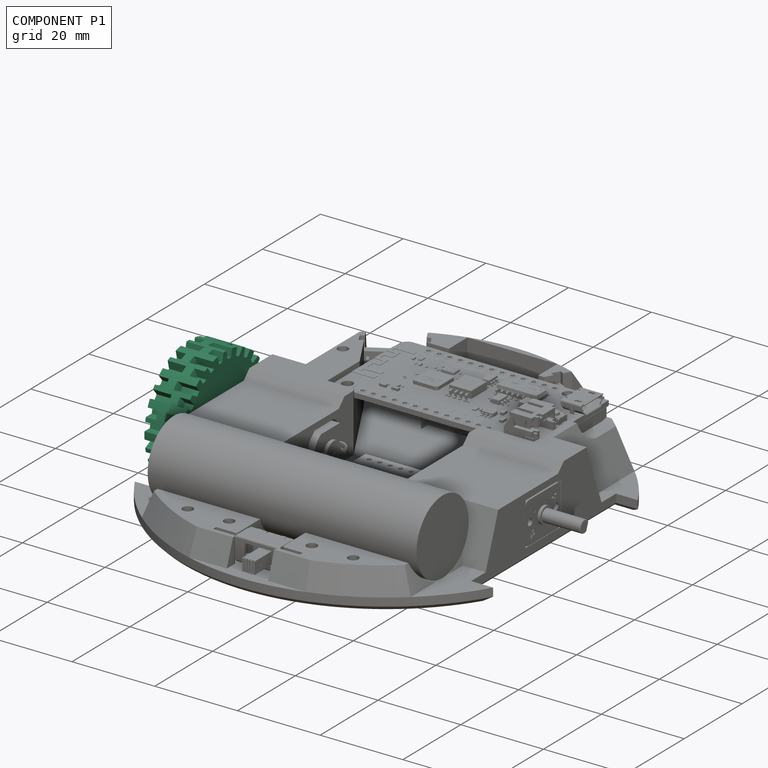
[diagram: component P1 — assembled]
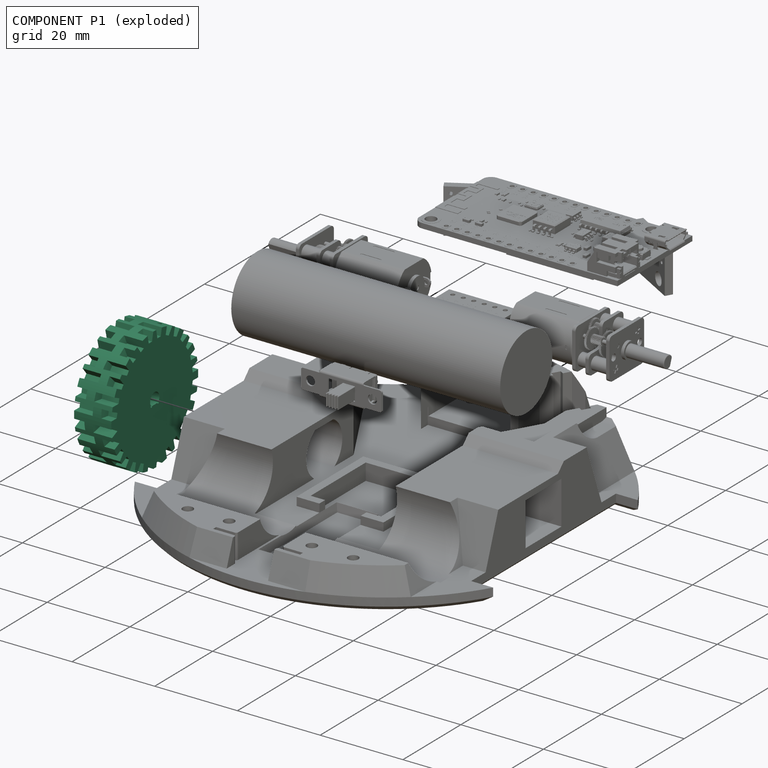
[diagram: component P1 — exploded]
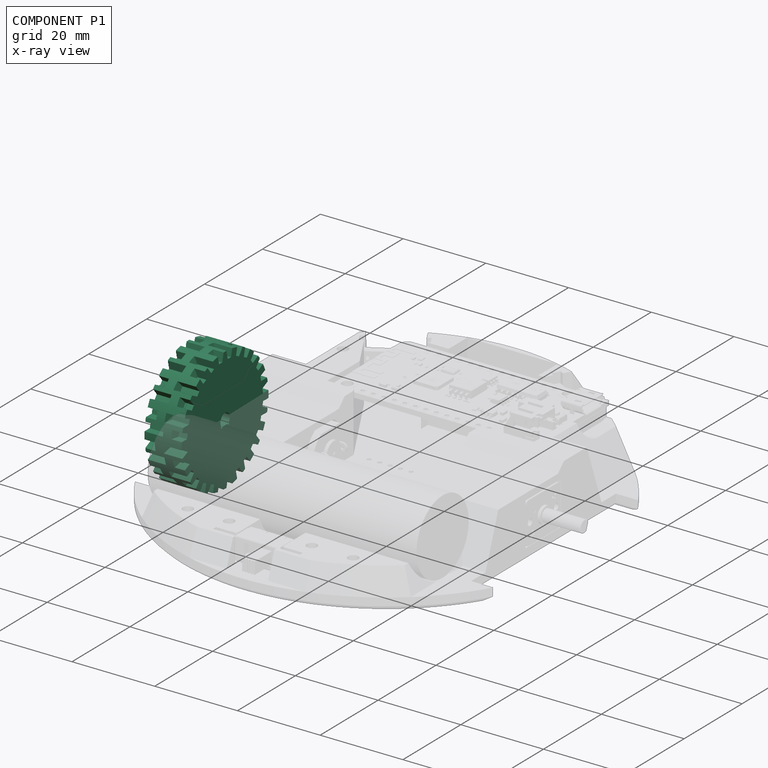
[diagram: component P1 — x-ray view]
COMPONENT P1 — recipe-attached ("Wheel002", modeled in this document).
Held by: resting contact with P0 (derived edge); resting contact with P2 (derived edge).
Construction recipe (the document's own serialized feature program — sketch geometry with constraints, then the solid features built on it; lengths are millimeters unless a unit is written):

FEATURE [Sketcher::SketchObject] Sketch003
  ArcFitTolerance = 1e-06
  AttachmentSupport = -> [YZ_Plane002]
  FullyConstrained = true
  MakeInternals = false
  MapMode = 5
  Placement = pos=(0,0,0) rot=(0.57735,0.57735,0.57735;2.0944rad)
  sketch-geometry (5):
    g0: Circle CenterX=0 CenterY=0 CenterZ=0 NormalX=0 NormalY=0 NormalZ=1 AngleXU=0 Radius=15
    g1: ArcOfCircle CenterX=0 CenterY=0 CenterZ=0 NormalX=0 NormalY=0 NormalZ=1 AngleXU=0 Radius=1.6 StartAngle=5.68155 EndAngle=10.0264
    g2: ArcOfCircle CenterX=-1.1619 CenterY=-1.1 CenterZ=0 NormalX=0 NormalY=0 NormalZ=1 AngleXU=0 Radius=0.25 StartAngle=2.25063 EndAngle=6.28319
    g3: ArcOfCircle CenterX=1.1619 CenterY=-1.1 CenterZ=0 NormalX=0 NormalY=0 NormalZ=1 AngleXU=0 Radius=0.25 StartAngle=3.14159 EndAngle=7.17415
    g4: LineSegment StartX=-0.911895 StartY=-1.1 StartZ=0 EndX=0.911895 EndY=-1.1 EndZ=0
  constraints (16):
    c: Coincident(g0,g-1)
    c: Diameter(g0) = 30
    c: Coincident(g1,g0)
    c: Coincident(g2,g1)
    c: Coincident(g3,g1)
    c: Coincident(g4,g2)
    c: Coincident(g4,g3)
    c: Horizontal(g4)
    c: Radius(g1) = 1.6
    c: Equal(g3,g2)
    c: Perpendicular(g3,g4)
    c: Perpendicular(g2,g4)
    c: Radius(g3) = 0.25
    c: Horizontal(g1,g1)
    c: PointOnObject(g3,g1)
    c: Distance(g-1,g4) = 1.1
FEATURE [PartDesign::Pad] Pad001
  Direction = (1,0,0)
  Length = 9
  Length2 = 10
  Placement = pos=(0,0,0) rot=(1,1,1;2.0944rad)
  Profile = -> Sketch003
  ReferenceAxis = -> Sketch003 [N_Axis]
  Refine = true
  Suppressed = false
  Type = 0
FEATURE [Sketcher::SketchObject] Sketch004
  ArcFitTolerance = 1e-06
  AttachmentOffset = pos=(-0.5,0,15) rot=(0,0,1;0rad)
  AttachmentSupport = -> [XY_Plane002]
  FullyConstrained = true
  MakeInternals = false
  MapMode = 5
  Placement = pos=(-0.5,0,15) rot=(0,0,1;0rad)
  sketch-geometry (16):
    g0: LineSegment StartX=0 StartY=-0.5 StartZ=0 EndX=0 EndY=-2.5 EndZ=0
    g1: LineSegment StartX=0 StartY=-2.5 StartZ=0 EndX=5 EndY=-2.5 EndZ=0
    g2: LineSegment StartX=5 StartY=-2.5 StartZ=0 EndX=5 EndY=-0.5 EndZ=0
    g3: LineSegment StartX=5 StartY=-0.5 StartZ=0 EndX=0 EndY=-0.5 EndZ=0
    g4: LineSegment StartX=10 StartY=0.5 StartZ=0 EndX=10 EndY=2.5 EndZ=0
    g5: LineSegment StartX=10 StartY=2.5 StartZ=0 EndX=5 EndY=2.5 EndZ=0
    g6: LineSegment StartX=5 StartY=2.5 StartZ=0 EndX=5 EndY=0.5 EndZ=0
    g7: LineSegment StartX=5 StartY=0.5 StartZ=0 EndX=10 EndY=0.5 EndZ=0
    g8: LineSegment StartX=0 StartY=2.5 StartZ=0 EndX=0 EndY=0.5 EndZ=0
    g9: LineSegment StartX=0 StartY=0.5 StartZ=0 EndX=3 EndY=0.5 EndZ=0
    g10: LineSegment StartX=3 StartY=0.5 StartZ=0 EndX=3 EndY=2.5 EndZ=0
    g11: LineSegment StartX=3 StartY=2.5 StartZ=0 EndX=0 EndY=2.5 EndZ=0
    g12: LineSegment StartX=7 StartY=-0.5 StartZ=0 EndX=7 EndY=-2.5 EndZ=0
    g13: LineSegment StartX=7 StartY=-2.5 StartZ=0 EndX=10 EndY=-2.5 EndZ=0
    g14: LineSegment StartX=10 StartY=-2.5 StartZ=0 EndX=10 EndY=-0.5 EndZ=0
    g15: LineSegment StartX=10 StartY=-0.5 StartZ=0 EndX=7 EndY=-0.5 EndZ=0
  constraints (48):
    c: Coincident(g0,g1)
    c: Coincident(g1,g2)
    c: Coincident(g2,g3)
    c: Coincident(g3,g0)
    c: Vertical(g0)
    c: Vertical(g2)
    c: Horizontal(g1)
    c: Horizontal(g3)
    c: PointOnObject(g0,g-2)
    c: Coincident(g4,g5)
    c: Coincident(g5,g6)
    c: Coincident(g6,g7)
    c: Coincident(g7,g4)
    c: Vertical(g4)
    c: Vertical(g6)
    c: Horizontal(g5)
    c: Horizontal(g7)
    c: Distance(g4,g-1) = 0.5
    c: Distance(g2,g-1) = 0.5
    c: DistanceX(g-1,g4) = 10
    c: DistanceX(g5,g5) = 5
    c: Equal(g5,g1)
    c: Equal(g2,g6)
    c: Distance(g2,g2) = 2
    c: Coincident(g8,g9)
    c: Coincident(g9,g10)
    c: Coincident(g10,g11)
    c: Coincident(g11,g8)
    c: Vertical(g8)
    c: Vertical(g10)
    c: Horizontal(g9)
    c: Horizontal(g11)
    c: PointOnObject(g8,g-2)
    c: Coincident(g12,g13)
    c: Coincident(g13,g14)
    c: Coincident(g14,g15)
    c: Coincident(g15,g12)
    c: Vertical(g12)
    c: Vertical(g14)
    c: Horizontal(g13)
    c: Horizontal(g15)
    c: Vertical(g14,g4)
    c: Horizontal(g12,g2)
    c: Horizontal(g12,g1)
    c: Horizontal(g10,g5)
    c: Horizontal(g9,g6)
    c: Equal(g9,g15)
    c: DistanceX(g10,g5) = 2
FEATURE [PartDesign::Pocket] Pocket
  BaseFeature = -> Pad001
  Direction = (0,0,-1)
  Length = 2
  Length2 = 5
  Placement = pos=(0,0,0) rot=(1,1,1;2.0944rad)
  Profile = -> Sketch004
  ReferenceAxis = -> Sketch004 [N_Axis]
  Refine = true
  Suppressed = false
  TaperAngle = -12
  Type = 0
FEATURE [PartDesign::PolarPattern] PolarPattern
  Angle = 360
  Axis = -> X_Axis002
  BaseFeature = -> Pocket
  Mode = 0
  Occurrences = 14
  Offset = 120
  Originals = -> [Pocket]
  Placement = pos=(0,0,0) rot=(1,1,1;2.0944rad)
  Refine = true
  Suppressed = false
  TransformMode = 0
FEATURE [PartDesign::Body] Body001  label="Wheel"
  AllowCompound = false
  Group = -> [Sketch003,Pad001,Sketch004,Pocket,PolarPattern]
  Origin = -> Origin002
  Placement = pos=(39,0,5) rot=(0,0,1;0rad)
  Tip = -> PolarPattern
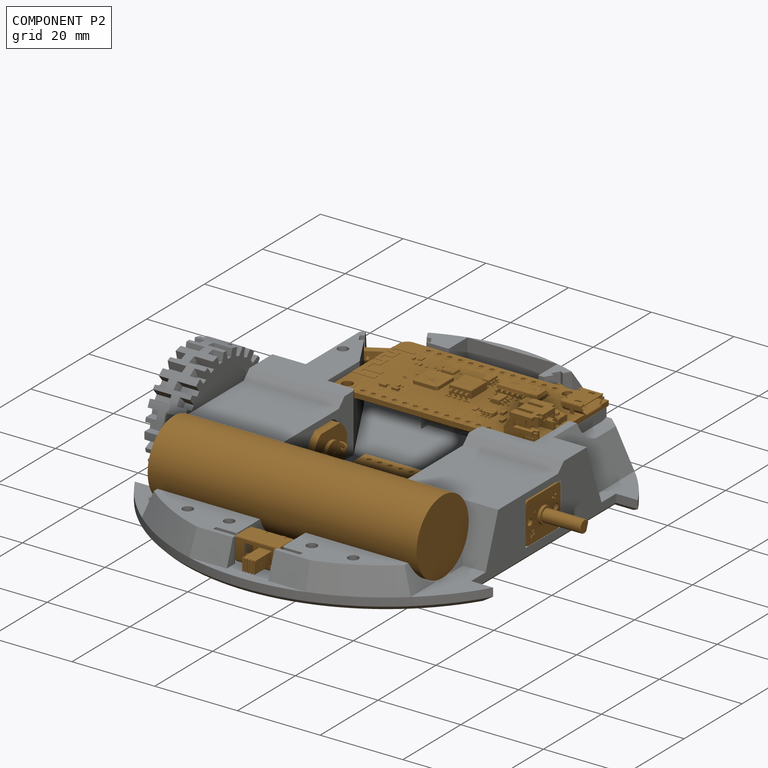
[diagram: component P2 — assembled]
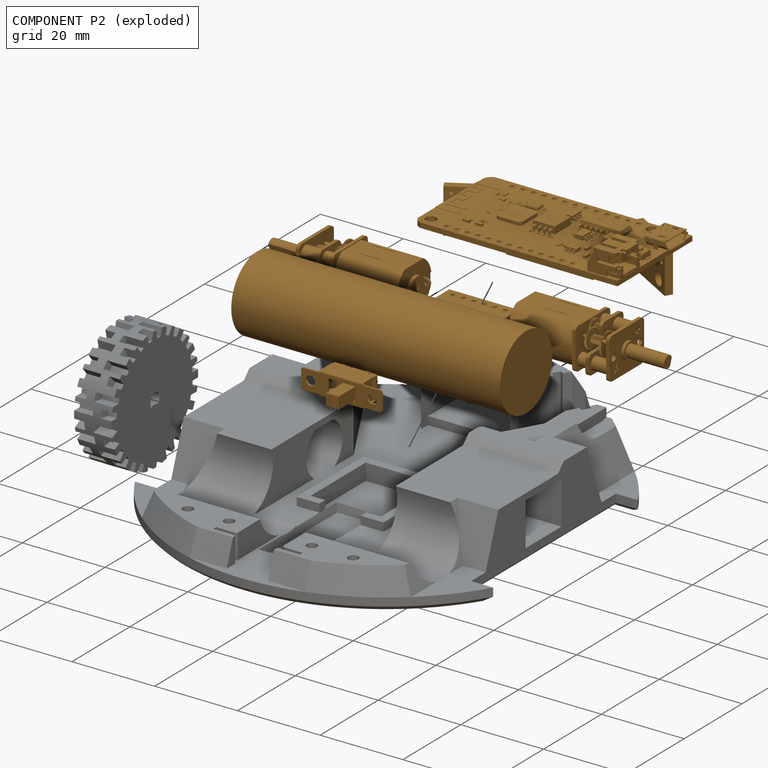
[diagram: component P2 — exploded]
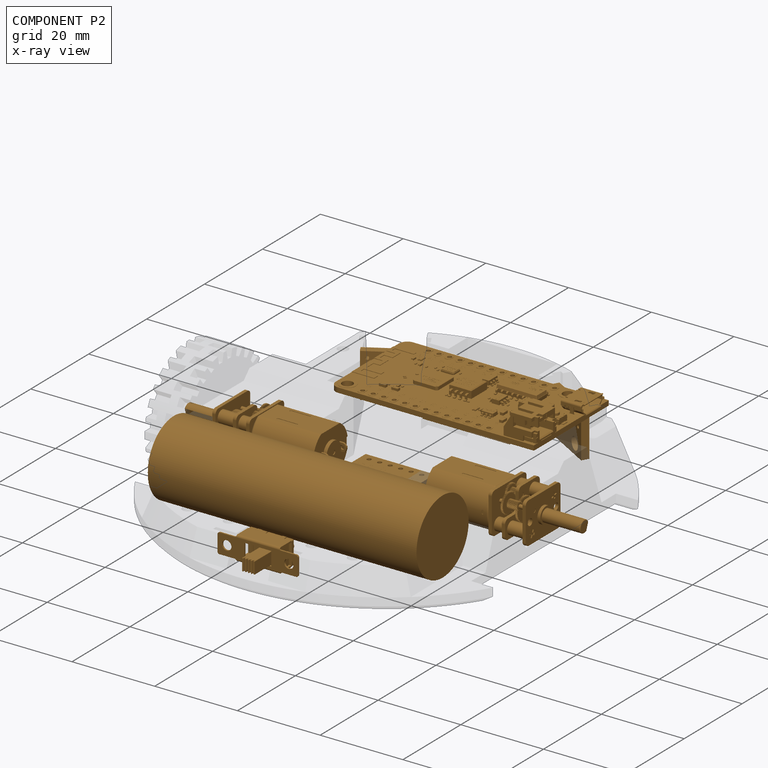
[diagram: component P2 — x-ray view]
COMPONENT P2 — geometry summary ("Layout"; no construction recipe available for this part):
  bounding box: 95.8 x 93.5 x 18.7 mm
  tessellated surface: 314,726 triangles
  volume: 22975 mm^3 (14% of its bounding box)
Held by: resting contact with P0 (derived edge); resting contact with P1 (derived edge).
PROVENANCE & LICENSES
Assembly and component geometry: a FreeCAD (.FCStd) document from a public repository crawl; components, placements and joints were extracted with FreeCAD and each solid tessellated.
Construction recipes: the document's own serialized feature recipes (and, for linked parts, the recipes of companion documents from the same project).
License: as declared in the source repository (recorded in the dataset sidecar).
Joints: native FreeCAD joints and A2plus constraints are mapped to standard mate types; edges marked 'derived from contact' connect touching components and are measured from the geometry, not modeled.
Verification: 2 of this assembly's 3 components carry a construction recipe (2 from this document itself); the rest are geometry-only. Every component's tessellation passed the extraction mesh gates (mesh-volume checksum against the B-rep where available, bounding-box inflation <= 2%).
Renders: orthographic iso camera (az 35 / el 25); the floor grid conveys scale (grid pitch printed in each image; no ruler). In the exploded view each component is displaced by its stored offset vector: the offsets alone carry the explosion direction (mate normal/axis signs are not orientation cues and do not encode it), and separation distances are assigned per mate-chain, not proportionally to assembly-order depth.
